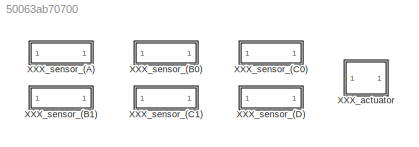
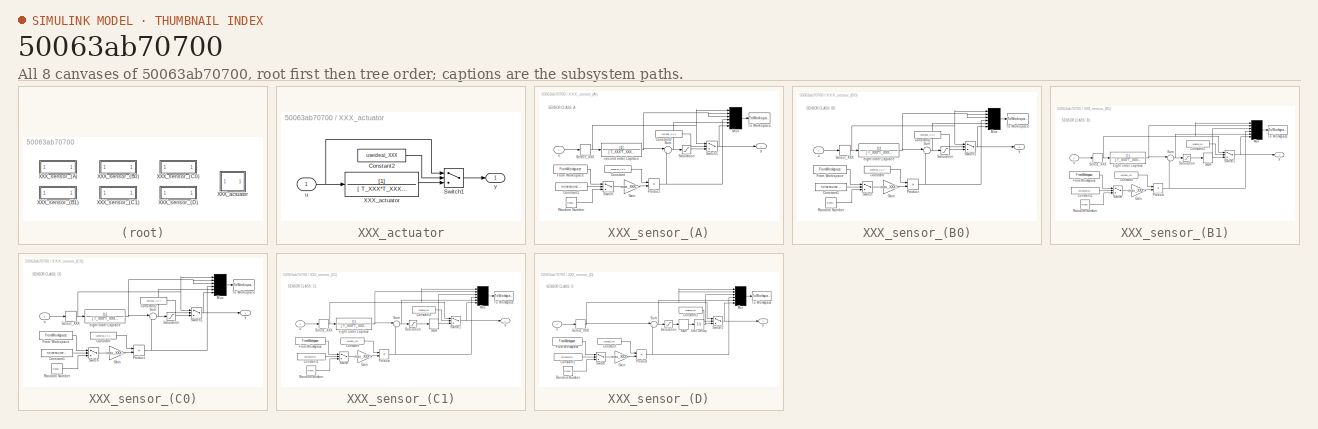
[diagram: thumbnail index - all 8 canvases of the model, root first then tree order]
MODEL slx_50063ab70700
KIND model
CONFIG AbsTol = auto
CONFIG EnableMultiTasking = on
CONFIG FixedStep = auto
CONFIG MaxStep = auto
CONFIG MinStep = auto
CONFIG RelTol = 1e-3
CONFIG SampleTimeConstraint = Unconstrained
CONFIG Solver = ode45
CONFIG SolverName = ode45
CONFIG StartTime = 0.0
CONFIG StopTime = 10.0
BLOCK [SubSystem] XXX_actuator
  Ports = [1, 1]
  RequestExecContextInheritance = off
BLOCK [Constant] XXX_actuator/Constant2
  Value = useideal_XXX
BLOCK [Switch] XXX_actuator/Switch1
  InputSameDT = off
  SaturateOnIntegerOverflow = off
  Threshold = 0.5
BLOCK [TransferFcn] XXX_actuator/XXX_actuator
  Denominator = [ T_XXX*T_XXX, 2*T_XXX, 1]
BLOCK [Inport] XXX_actuator/u
  IconDisplay = Port number
BLOCK [Outport] XXX_actuator/y
  IconDisplay = Port number
BLOCK [SubSystem] XXX_sensor_(A)
  Ports = [1, 1]
  RequestExecContextInheritance = off
BLOCK [Constant] XXX_sensor_(A)/Constant
  Value = usenoise_XXX
BLOCK [Constant] XXX_sensor_(A)/Constant1
  Value = noisesource_XXX
BLOCK [Constant] XXX_sensor_(A)/Constant2
  Value = useideal_XXX
BLOCK [FromWorkspace] XXX_sensor_(A)/From Workspace
  SampleTime = 0
  VariableName = NOISEDATA_XXX
BLOCK [Gain] XXX_sensor_(A)/Gain
  Gain = max_XXX*std_XXX
BLOCK [Mux] XXX_sensor_(A)/Mux
  Inputs = 6
  Ports = [6, 1]
BLOCK [Product] XXX_sensor_(A)/Product
  Ports = [2, 1]
  RndMeth = Floor
BLOCK [RandomNumber] XXX_sensor_(A)/Random Number
  SampleTime = 1/1440
  Seed = noiseseed_XXX
BLOCK [Saturate] XXX_sensor_(A)/Saturation
  InputPortMap = u0
  LowerLimit = min_XXX
  Ports = [1, 1]
  UpperLimit = max_XXX
BLOCK [Selector] XXX_sensor_(A)/Select_XXX
  IndexOptions = Index vector (dialog)
  Indices = [XXX]
  InputPortWidth = 15
  OutputSizes = 1
  Ports = [1, 1]
BLOCK [Sum] XXX_sensor_(A)/Sum
  IconShape = round
  Inputs = |++
  Ports = [2, 1]
BLOCK [Switch] XXX_sensor_(A)/Switch
  InputSameDT = off
  SaturateOnIntegerOverflow = off
  Threshold = 0.5
BLOCK [Switch] XXX_sensor_(A)/Switch1
  InputSameDT = off
  SaturateOnIntegerOverflow = off
  Threshold = 0.5
BLOCK [ToWorkspace] XXX_sensor_(A)/To Workspace
  MaxDataPoints = inf
  Ports = [1]
  SampleTime = -1
  VariableName = XXXsensor
BLOCK [TransferFcn] XXX_sensor_(A)/second order Laplace
  Denominator = [ T_XXX*T_XXX, 2*T_XXX, 1]
BLOCK [Inport] XXX_sensor_(A)/u
  IconDisplay = Port number
BLOCK [Outport] XXX_sensor_(A)/y
  IconDisplay = Port number
BLOCK [SubSystem] XXX_sensor_(B0)
  Ports = [1, 1]
  RequestExecContextInheritance = off
BLOCK [Constant] XXX_sensor_(B0)/Constant
  Value = usenoise_XXX
BLOCK [Constant] XXX_sensor_(B0)/Constant1
  Value = noisesource_XXX
BLOCK [Constant] XXX_sensor_(B0)/Constant2
  Value = useideal_XXX
BLOCK [FromWorkspace] XXX_sensor_(B0)/From Workspace
  SampleTime = 0
  VariableName = NOISEDATA_XXX
BLOCK [Gain] XXX_sensor_(B0)/Gain
  Gain = max_XXX*std_XXX
BLOCK [Mux] XXX_sensor_(B0)/Mux
  Inputs = 6
  Ports = [6, 1]
BLOCK [Product] XXX_sensor_(B0)/Product
  Ports = [2, 1]
  RndMeth = Floor
BLOCK [RandomNumber] XXX_sensor_(B0)/Random Number
  SampleTime = 1/1440
  Seed = noiseseed_XXX
BLOCK [Saturate] XXX_sensor_(B0)/Saturation
  InputPortMap = u0
  LowerLimit = min_XXX
  Ports = [1, 1]
  UpperLimit = max_XXX
BLOCK [Selector] XXX_sensor_(B0)/Select_XXX
  IndexOptions = Index vector (dialog)
  Indices = [XXX]
  InputPortWidth = 15
  OutputSizes = 1
  Ports = [1, 1]
BLOCK [Sum] XXX_sensor_(B0)/Sum
  IconShape = round
  Inputs = |++
  Ports = [2, 1]
BLOCK [Switch] XXX_sensor_(B0)/Switch
  InputSameDT = off
  SaturateOnIntegerOverflow = off
  Threshold = 0.5
BLOCK [Switch] XXX_sensor_(B0)/Switch1
  InputSameDT = off
  SaturateOnIntegerOverflow = off
  Threshold = 0.5
BLOCK [ToWorkspace] XXX_sensor_(B0)/To Workspace
  MaxDataPoints = inf
  Ports = [1]
  SampleTime = -1
  VariableName = XXXsensor
BLOCK [TransferFcn] XXX_sensor_(B0)/eight order Laplace
  Denominator = [ T_XXX*T_XXX*T_XXX*T_XXX*T_XXX*T_XXX*T_XXX*T_XXX, 8*T_XXX*T_XXX*T_XXX*T_XXX*T_XXX*T_XXX*T_XXX, 28*T_XXX*T_XXX*T_XXX*T_XXX*T_XXX*T_XXX, 56*T_XXX*T_XXX*T_XXX*T_XXX*T_XXX, 70*T_XXX*T_XXX*T_XXX*T_XXX, 56*T_XXX*T_XXX*T_XXX, 28*T_XXX*T_XXX, 8* T_XXX, 1]  <repeated x4 — deduplicated; at blocks: eight order Laplace>
BLOCK [Inport] XXX_sensor_(B0)/u
  IconDisplay = Port number
BLOCK [Outport] XXX_sensor_(B0)/y
  IconDisplay = Port number
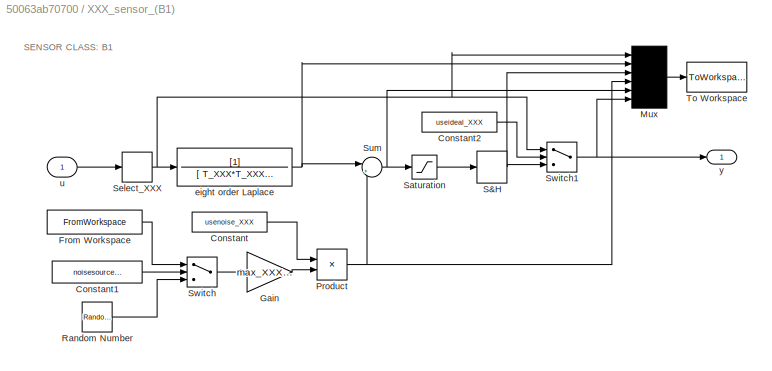
BLOCK [SubSystem] XXX_sensor_(B1)
  Ports = [1, 1]
  RequestExecContextInheritance = off
BLOCK [Constant] XXX_sensor_(B1)/Constant
  Value = usenoise_XXX
BLOCK [Constant] XXX_sensor_(B1)/Constant1
  Value = noisesource_XXX
BLOCK [Constant] XXX_sensor_(B1)/Constant2
  Value = useideal_XXX
BLOCK [FromWorkspace] XXX_sensor_(B1)/From Workspace
  SampleTime = 0
  VariableName = NOISEDATA_XXX
BLOCK [Gain] XXX_sensor_(B1)/Gain
  Gain = max_XXX*std_XXX
BLOCK [Mux] XXX_sensor_(B1)/Mux
  Inputs = 6
  Ports = [6, 1]
BLOCK [Product] XXX_sensor_(B1)/Product
  Ports = [2, 1]
  RndMeth = Floor
BLOCK [RandomNumber] XXX_sensor_(B1)/Random Number
  SampleTime = 1/1440
  Seed = noiseseed_XXX
BLOCK [ZeroOrderHold] XXX_sensor_(B1)/S&H
  SampleTime = T0_XXX
BLOCK [Saturate] XXX_sensor_(B1)/Saturation
  InputPortMap = u0
  LowerLimit = min_XXX
  Ports = [1, 1]
  UpperLimit = max_XXX
BLOCK [Selector] XXX_sensor_(B1)/Select_XXX
  IndexOptions = Index vector (dialog)
  Indices = [XXX]
  InputPortWidth = 15
  OutputSizes = 1
  Ports = [1, 1]
BLOCK [Sum] XXX_sensor_(B1)/Sum
  IconShape = round
  Inputs = |++
  Ports = [2, 1]
BLOCK [Switch] XXX_sensor_(B1)/Switch
  InputSameDT = off
  SaturateOnIntegerOverflow = off
  Threshold = 0.5
BLOCK [Switch] XXX_sensor_(B1)/Switch1
  InputSameDT = off
  SaturateOnIntegerOverflow = off
  Threshold = 0.5
BLOCK [ToWorkspace] XXX_sensor_(B1)/To Workspace
  MaxDataPoints = inf
  Ports = [1]
  SampleTime = -1
  VariableName = XXXsensor
BLOCK [TransferFcn] XXX_sensor_(B1)/eight order Laplace
BLOCK [Inport] XXX_sensor_(B1)/u
  IconDisplay = Port number
BLOCK [Outport] XXX_sensor_(B1)/y
  IconDisplay = Port number
BLOCK [SubSystem] XXX_sensor_(C0)
  Ports = [1, 1]
  RequestExecContextInheritance = off
BLOCK [Constant] XXX_sensor_(C0)/Constant
  Value = usenoise_XXX
BLOCK [Constant] XXX_sensor_(C0)/Constant1
  Value = noisesource_XXX
BLOCK [Constant] XXX_sensor_(C0)/Constant2
  Value = useideal_XXX
BLOCK [FromWorkspace] XXX_sensor_(C0)/From Workspace
  SampleTime = 0
  VariableName = NOISEDATA_XXX
BLOCK [Gain] XXX_sensor_(C0)/Gain
  Gain = max_XXX*std_XXX
BLOCK [Mux] XXX_sensor_(C0)/Mux
  Inputs = 6
  Ports = [6, 1]
BLOCK [Product] XXX_sensor_(C0)/Product
  Ports = [2, 1]
  RndMeth = Floor
BLOCK [RandomNumber] XXX_sensor_(C0)/Random Number
  SampleTime = 1/1440
  Seed = noiseseed_XXX
BLOCK [Saturate] XXX_sensor_(C0)/Saturation
  InputPortMap = u0
  LowerLimit = min_XXX
  Ports = [1, 1]
  UpperLimit = max_XXX
BLOCK [Selector] XXX_sensor_(C0)/Select_XXX
  IndexOptions = Index vector (dialog)
  Indices = [XXX]
  InputPortWidth = 15
  OutputSizes = 1
  Ports = [1, 1]
BLOCK [Sum] XXX_sensor_(C0)/Sum
  IconShape = round
  Inputs = |++
  Ports = [2, 1]
BLOCK [Switch] XXX_sensor_(C0)/Switch
  InputSameDT = off
  SaturateOnIntegerOverflow = off
  Threshold = 0.5
BLOCK [Switch] XXX_sensor_(C0)/Switch1
  InputSameDT = off
  SaturateOnIntegerOverflow = off
  Threshold = 0.5
BLOCK [ToWorkspace] XXX_sensor_(C0)/To Workspace
  MaxDataPoints = inf
  Ports = [1]
  SampleTime = -1
  VariableName = XXXsensor
BLOCK [TransferFcn] XXX_sensor_(C0)/eight order Laplace
BLOCK [Inport] XXX_sensor_(C0)/u
  IconDisplay = Port number
BLOCK [Outport] XXX_sensor_(C0)/y
  IconDisplay = Port number
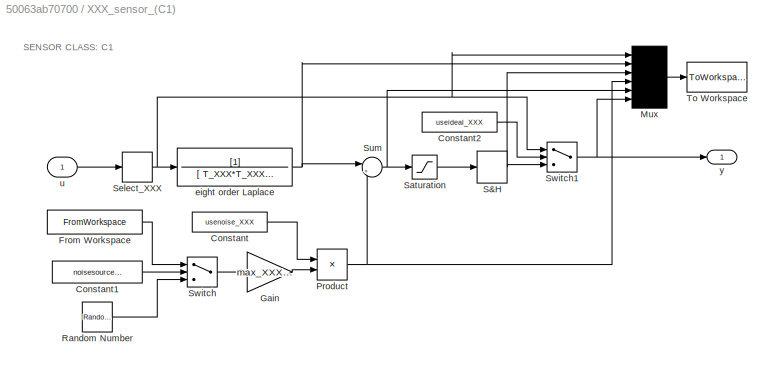
BLOCK [SubSystem] XXX_sensor_(C1)
  Ports = [1, 1]
  RequestExecContextInheritance = off
BLOCK [Constant] XXX_sensor_(C1)/Constant
  Value = usenoise_XXX
BLOCK [Constant] XXX_sensor_(C1)/Constant1
  Value = noisesource_XXX
BLOCK [Constant] XXX_sensor_(C1)/Constant2
  Value = useideal_XXX
BLOCK [FromWorkspace] XXX_sensor_(C1)/From Workspace
  SampleTime = 0
  VariableName = NOISEDATA_XXX
BLOCK [Gain] XXX_sensor_(C1)/Gain
  Gain = max_XXX*std_XXX
BLOCK [Mux] XXX_sensor_(C1)/Mux
  Inputs = 6
  Ports = [6, 1]
BLOCK [Product] XXX_sensor_(C1)/Product
  Ports = [2, 1]
  RndMeth = Floor
BLOCK [RandomNumber] XXX_sensor_(C1)/Random Number
  SampleTime = 1/1440
  Seed = noiseseed_XXX
BLOCK [ZeroOrderHold] XXX_sensor_(C1)/S&H
  SampleTime = T0_XXX
BLOCK [Saturate] XXX_sensor_(C1)/Saturation
  InputPortMap = u0
  LowerLimit = min_XXX
  Ports = [1, 1]
  UpperLimit = max_XXX
BLOCK [Selector] XXX_sensor_(C1)/Select_XXX
  IndexOptions = Index vector (dialog)
  Indices = [XXX]
  InputPortWidth = 15
  OutputSizes = 1
  Ports = [1, 1]
BLOCK [Sum] XXX_sensor_(C1)/Sum
  IconShape = round
  Inputs = |++
  Ports = [2, 1]
BLOCK [Switch] XXX_sensor_(C1)/Switch
  InputSameDT = off
  SaturateOnIntegerOverflow = off
  Threshold = 0.5
BLOCK [Switch] XXX_sensor_(C1)/Switch1
  InputSameDT = off
  SaturateOnIntegerOverflow = off
  Threshold = 0.5
BLOCK [ToWorkspace] XXX_sensor_(C1)/To Workspace
  MaxDataPoints = inf
  Ports = [1]
  SampleTime = -1
  VariableName = XXXsensor
BLOCK [TransferFcn] XXX_sensor_(C1)/eight order Laplace
BLOCK [Inport] XXX_sensor_(C1)/u
  IconDisplay = Port number
BLOCK [Outport] XXX_sensor_(C1)/y
  IconDisplay = Port number
BLOCK [SubSystem] XXX_sensor_(D)
  Ports = [1, 1]
  RequestExecContextInheritance = off
BLOCK [Constant] XXX_sensor_(D)/Constant
  Value = usenoise_XXX
BLOCK [Constant] XXX_sensor_(D)/Constant1
  Value = noisesource_XXX
BLOCK [Constant] XXX_sensor_(D)/Constant2
  Value = useideal_XXX
BLOCK [FromWorkspace] XXX_sensor_(D)/From Workspace
  SampleTime = 0
  VariableName = NOISEDATA_XXX
BLOCK [Gain] XXX_sensor_(D)/Gain
  Gain = max_XXX*std_XXX
BLOCK [Mux] XXX_sensor_(D)/Mux
  Inputs = 6
  Ports = [6, 1]
BLOCK [Product] XXX_sensor_(D)/Product
  Ports = [2, 1]
  RndMeth = Floor
BLOCK [RandomNumber] XXX_sensor_(D)/Random Number
  SampleTime = 1/1440
  Seed = noiseseed_XXX
BLOCK [ZeroOrderHold] XXX_sensor_(D)/S&H
  SampleTime = T0_XXX
BLOCK [Saturate] XXX_sensor_(D)/Saturation
  InputPortMap = u0
  LowerLimit = min_XXX
  Ports = [1, 1]
  UpperLimit = max_XXX
BLOCK [Selector] XXX_sensor_(D)/Select_XXX
  IndexOptions = Index vector (dialog)
  Indices = [XXX]
  InputPortWidth = 15
  OutputSizes = 1
  Ports = [1, 1]
BLOCK [Sum] XXX_sensor_(D)/Sum
  IconShape = round
  Inputs = |++
  Ports = [2, 1]
BLOCK [Switch] XXX_sensor_(D)/Switch
  InputSameDT = off
  SaturateOnIntegerOverflow = off
  Threshold = 0.5
BLOCK [Switch] XXX_sensor_(D)/Switch1
  InputSameDT = off
  SaturateOnIntegerOverflow = off
  Threshold = 0.5
BLOCK [ToWorkspace] XXX_sensor_(D)/To Workspace
  MaxDataPoints = inf
  Ports = [1]
  SampleTime = -1
  VariableName = XXXsensor
BLOCK [UnitDelay] XXX_sensor_(D)/Unit Delay
  SampleTime = T0_XXX
BLOCK [Inport] XXX_sensor_(D)/u
  IconDisplay = Port number
BLOCK [Outport] XXX_sensor_(D)/y
  IconDisplay = Port number
ANNOTATION XXX_sensor_(A): SENSOR CLASS: A
ANNOTATION XXX_sensor_(B0): SENSOR CLASS: B0
ANNOTATION XXX_sensor_(B1): SENSOR CLASS: B1
ANNOTATION XXX_sensor_(C0): SENSOR CLASS: C0
ANNOTATION XXX_sensor_(C1): SENSOR CLASS: C1
ANNOTATION XXX_sensor_(D): SENSOR CLASS: D
LINE XXX_actuator/Constant2:1 -> XXX_actuator/Switch1:2
LINE XXX_actuator/Switch1:1 -> XXX_actuator/y:1
LINE XXX_actuator/XXX_actuator:1 -> XXX_actuator/Switch1:3
NET XXX_actuator/u:1 -> XXX_actuator/Switch1:1, XXX_actuator/XXX_actuator:1
LINE XXX_sensor_(A)/Constant1:1 -> XXX_sensor_(A)/Switch:2
LINE XXX_sensor_(A)/Constant2:1 -> XXX_sensor_(A)/Switch1:2
LINE XXX_sensor_(A)/Constant:1 -> XXX_sensor_(A)/Product:1
LINE XXX_sensor_(A)/From Workspace:1 -> XXX_sensor_(A)/Switch:1
LINE XXX_sensor_(A)/Gain:1 -> XXX_sensor_(A)/Product:2
LINE XXX_sensor_(A)/Mux:1 -> XXX_sensor_(A)/To Workspace:1
NET XXX_sensor_(A)/Product:1 -> XXX_sensor_(A)/Mux:4, XXX_sensor_(A)/Sum:2
LINE XXX_sensor_(A)/Random Number:1 -> XXX_sensor_(A)/Switch:3
LINE XXX_sensor_(A)/Saturation:1 -> XXX_sensor_(A)/Switch1:3
NET XXX_sensor_(A)/Select_XXX:1 -> XXX_sensor_(A)/Mux:1, XXX_sensor_(A)/Switch1:1, XXX_sensor_(A)/second order Laplace:1
NET XXX_sensor_(A)/Sum:1 -> XXX_sensor_(A)/Mux:5, XXX_sensor_(A)/Saturation:1
NET XXX_sensor_(A)/Switch1:1 -> XXX_sensor_(A)/Mux:6, XXX_sensor_(A)/y:1
LINE XXX_sensor_(A)/Switch:1 -> XXX_sensor_(A)/Gain:1
NET XXX_sensor_(A)/second order Laplace:1 -> XXX_sensor_(A)/Mux:2, XXX_sensor_(A)/Mux:3, XXX_sensor_(A)/Sum:1
LINE XXX_sensor_(A)/u:1 -> XXX_sensor_(A)/Select_XXX:1
LINE XXX_sensor_(B0)/Constant1:1 -> XXX_sensor_(B0)/Switch:2
LINE XXX_sensor_(B0)/Constant2:1 -> XXX_sensor_(B0)/Switch1:2
LINE XXX_sensor_(B0)/Constant:1 -> XXX_sensor_(B0)/Product:1
LINE XXX_sensor_(B0)/From Workspace:1 -> XXX_sensor_(B0)/Switch:1
LINE XXX_sensor_(B0)/Gain:1 -> XXX_sensor_(B0)/Product:2
LINE XXX_sensor_(B0)/Mux:1 -> XXX_sensor_(B0)/To Workspace:1
NET XXX_sensor_(B0)/Product:1 -> XXX_sensor_(B0)/Mux:4, XXX_sensor_(B0)/Sum:2
LINE XXX_sensor_(B0)/Random Number:1 -> XXX_sensor_(B0)/Switch:3
LINE XXX_sensor_(B0)/Saturation:1 -> XXX_sensor_(B0)/Switch1:3
NET XXX_sensor_(B0)/Select_XXX:1 -> XXX_sensor_(B0)/Mux:1, XXX_sensor_(B0)/Switch1:1, XXX_sensor_(B0)/eight order Laplace:1
NET XXX_sensor_(B0)/Sum:1 -> XXX_sensor_(B0)/Mux:5, XXX_sensor_(B0)/Saturation:1
NET XXX_sensor_(B0)/Switch1:1 -> XXX_sensor_(B0)/Mux:6, XXX_sensor_(B0)/y:1
LINE XXX_sensor_(B0)/Switch:1 -> XXX_sensor_(B0)/Gain:1
NET XXX_sensor_(B0)/eight order Laplace:1 -> XXX_sensor_(B0)/Mux:2, XXX_sensor_(B0)/Mux:3, XXX_sensor_(B0)/Sum:1
LINE XXX_sensor_(B0)/u:1 -> XXX_sensor_(B0)/Select_XXX:1
LINE XXX_sensor_(B1)/Constant1:1 -> XXX_sensor_(B1)/Switch:2
LINE XXX_sensor_(B1)/Constant2:1 -> XXX_sensor_(B1)/Switch1:2
LINE XXX_sensor_(B1)/Constant:1 -> XXX_sensor_(B1)/Product:1
LINE XXX_sensor_(B1)/From Workspace:1 -> XXX_sensor_(B1)/Switch:1
LINE XXX_sensor_(B1)/Gain:1 -> XXX_sensor_(B1)/Product:2
LINE XXX_sensor_(B1)/Mux:1 -> XXX_sensor_(B1)/To Workspace:1
NET XXX_sensor_(B1)/Product:1 -> XXX_sensor_(B1)/Mux:4, XXX_sensor_(B1)/Sum:2
LINE XXX_sensor_(B1)/Random Number:1 -> XXX_sensor_(B1)/Switch:3
NET XXX_sensor_(B1)/S&H:1 -> XXX_sensor_(B1)/Mux:3, XXX_sensor_(B1)/Switch1:3
LINE XXX_sensor_(B1)/Saturation:1 -> XXX_sensor_(B1)/S&H:1
NET XXX_sensor_(B1)/Select_XXX:1 -> XXX_sensor_(B1)/Mux:1, XXX_sensor_(B1)/Switch1:1, XXX_sensor_(B1)/eight order Laplace:1
NET XXX_sensor_(B1)/Sum:1 -> XXX_sensor_(B1)/Mux:5, XXX_sensor_(B1)/Saturation:1
NET XXX_sensor_(B1)/Switch1:1 -> XXX_sensor_(B1)/Mux:6, XXX_sensor_(B1)/y:1
LINE XXX_sensor_(B1)/Switch:1 -> XXX_sensor_(B1)/Gain:1
NET XXX_sensor_(B1)/eight order Laplace:1 -> XXX_sensor_(B1)/Mux:2, XXX_sensor_(B1)/Sum:1
LINE XXX_sensor_(B1)/u:1 -> XXX_sensor_(B1)/Select_XXX:1
LINE XXX_sensor_(C0)/Constant1:1 -> XXX_sensor_(C0)/Switch:2
LINE XXX_sensor_(C0)/Constant2:1 -> XXX_sensor_(C0)/Switch1:2
LINE XXX_sensor_(C0)/Constant:1 -> XXX_sensor_(C0)/Product:1
LINE XXX_sensor_(C0)/From Workspace:1 -> XXX_sensor_(C0)/Switch:1
LINE XXX_sensor_(C0)/Gain:1 -> XXX_sensor_(C0)/Product:2
LINE XXX_sensor_(C0)/Mux:1 -> XXX_sensor_(C0)/To Workspace:1
NET XXX_sensor_(C0)/Product:1 -> XXX_sensor_(C0)/Mux:4, XXX_sensor_(C0)/Sum:2
LINE XXX_sensor_(C0)/Random Number:1 -> XXX_sensor_(C0)/Switch:3
LINE XXX_sensor_(C0)/Saturation:1 -> XXX_sensor_(C0)/Switch1:3
NET XXX_sensor_(C0)/Select_XXX:1 -> XXX_sensor_(C0)/Mux:1, XXX_sensor_(C0)/Switch1:1, XXX_sensor_(C0)/eight order Laplace:1
NET XXX_sensor_(C0)/Sum:1 -> XXX_sensor_(C0)/Mux:5, XXX_sensor_(C0)/Saturation:1
NET XXX_sensor_(C0)/Switch1:1 -> XXX_sensor_(C0)/Mux:6, XXX_sensor_(C0)/y:1
LINE XXX_sensor_(C0)/Switch:1 -> XXX_sensor_(C0)/Gain:1
NET XXX_sensor_(C0)/eight order Laplace:1 -> XXX_sensor_(C0)/Mux:2, XXX_sensor_(C0)/Mux:3, XXX_sensor_(C0)/Sum:1
LINE XXX_sensor_(C0)/u:1 -> XXX_sensor_(C0)/Select_XXX:1
LINE XXX_sensor_(C1)/Constant1:1 -> XXX_sensor_(C1)/Switch:2
LINE XXX_sensor_(C1)/Constant2:1 -> XXX_sensor_(C1)/Switch1:2
LINE XXX_sensor_(C1)/Constant:1 -> XXX_sensor_(C1)/Product:1
LINE XXX_sensor_(C1)/From Workspace:1 -> XXX_sensor_(C1)/Switch:1
LINE XXX_sensor_(C1)/Gain:1 -> XXX_sensor_(C1)/Product:2
LINE XXX_sensor_(C1)/Mux:1 -> XXX_sensor_(C1)/To Workspace:1
NET XXX_sensor_(C1)/Product:1 -> XXX_sensor_(C1)/Mux:4, XXX_sensor_(C1)/Sum:2
LINE XXX_sensor_(C1)/Random Number:1 -> XXX_sensor_(C1)/Switch:3
NET XXX_sensor_(C1)/S&H:1 -> XXX_sensor_(C1)/Mux:3, XXX_sensor_(C1)/Switch1:3
LINE XXX_sensor_(C1)/Saturation:1 -> XXX_sensor_(C1)/S&H:1
NET XXX_sensor_(C1)/Select_XXX:1 -> XXX_sensor_(C1)/Mux:1, XXX_sensor_(C1)/Switch1:1, XXX_sensor_(C1)/eight order Laplace:1
NET XXX_sensor_(C1)/Sum:1 -> XXX_sensor_(C1)/Mux:5, XXX_sensor_(C1)/Saturation:1
NET XXX_sensor_(C1)/Switch1:1 -> XXX_sensor_(C1)/Mux:6, XXX_sensor_(C1)/y:1
LINE XXX_sensor_(C1)/Switch:1 -> XXX_sensor_(C1)/Gain:1
NET XXX_sensor_(C1)/eight order Laplace:1 -> XXX_sensor_(C1)/Mux:2, XXX_sensor_(C1)/Sum:1
LINE XXX_sensor_(C1)/u:1 -> XXX_sensor_(C1)/Select_XXX:1
LINE XXX_sensor_(D)/Constant1:1 -> XXX_sensor_(D)/Switch:2
LINE XXX_sensor_(D)/Constant2:1 -> XXX_sensor_(D)/Switch1:2
LINE XXX_sensor_(D)/Constant:1 -> XXX_sensor_(D)/Product:1
LINE XXX_sensor_(D)/From Workspace:1 -> XXX_sensor_(D)/Switch:1
LINE XXX_sensor_(D)/Gain:1 -> XXX_sensor_(D)/Product:2
LINE XXX_sensor_(D)/Mux:1 -> XXX_sensor_(D)/To Workspace:1
NET XXX_sensor_(D)/Product:1 -> XXX_sensor_(D)/Mux:4, XXX_sensor_(D)/Sum:2
LINE XXX_sensor_(D)/Random Number:1 -> XXX_sensor_(D)/Switch:3
LINE XXX_sensor_(D)/S&H:1 -> XXX_sensor_(D)/Unit Delay:1
LINE XXX_sensor_(D)/Saturation:1 -> XXX_sensor_(D)/S&H:1
NET XXX_sensor_(D)/Select_XXX:1 -> XXX_sensor_(D)/Mux:1, XXX_sensor_(D)/Mux:2, XXX_sensor_(D)/Sum:1, XXX_sensor_(D)/Switch1:1
NET XXX_sensor_(D)/Sum:1 -> XXX_sensor_(D)/Mux:5, XXX_sensor_(D)/Saturation:1
NET XXX_sensor_(D)/Switch1:1 -> XXX_sensor_(D)/Mux:6, XXX_sensor_(D)/y:1
LINE XXX_sensor_(D)/Switch:1 -> XXX_sensor_(D)/Gain:1
NET XXX_sensor_(D)/Unit Delay:1 -> XXX_sensor_(D)/Mux:3, XXX_sensor_(D)/Switch1:3
LINE XXX_sensor_(D)/u:1 -> XXX_sensor_(D)/Select_XXX:1
note: NET lines group one-source signal fan-out (src -> all destinations, sorted); 1:1 wires keep LINE
